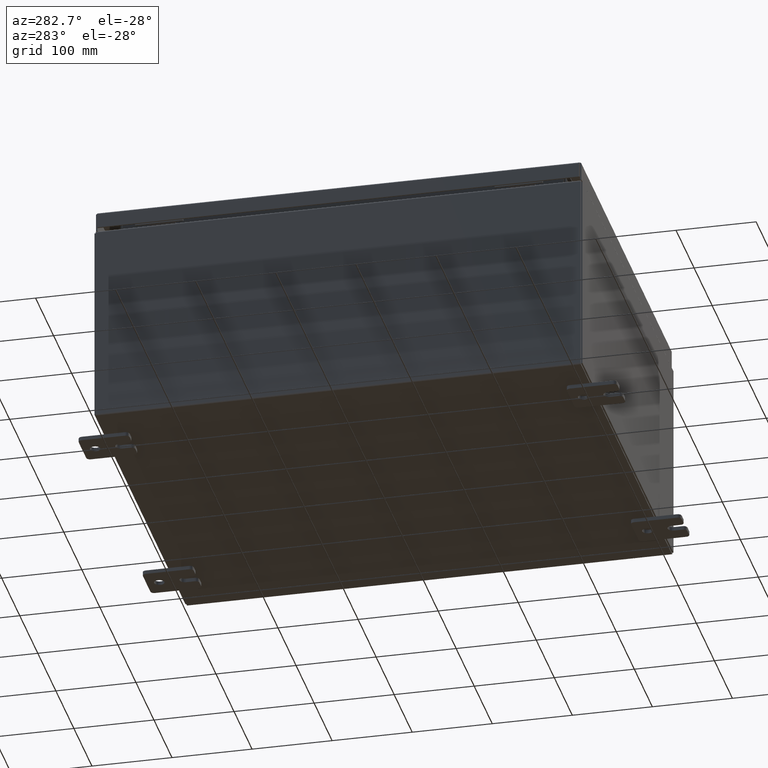
[diagram: clean part render]
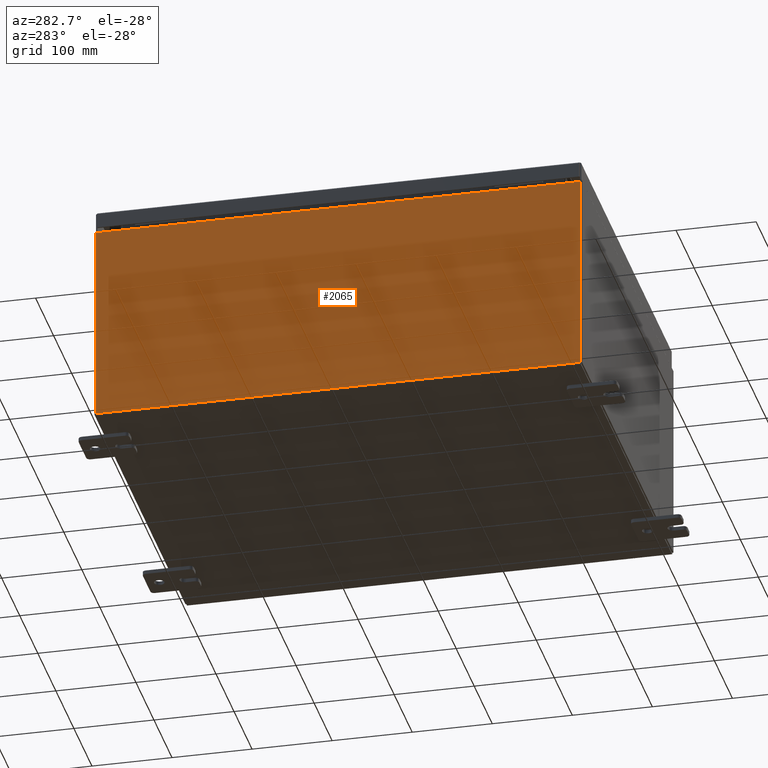
[diagram: same view with one face highlighted and labeled with its STEP entity id]
A machine part, auxiliary view. The second image highlights one B-rep face of the part: STEP entity #2065.
In plain terms, the highlighted planar face has unit normal (1, 0, 0).
Its self-contained STEP definition (entity closure, byte-faithful):
#131 = DIRECTION ( 'NONE',  ( 3.523082860860888200E-015, 0.0000000000000000000, -1.000000000000000000 ) ) ;
#1547 = DIRECTION ( 'NONE',  ( 1.000000000000000000, 0.0000000000000000000, 3.523082860860887800E-015 ) ) ;
#2065 = ADVANCED_FACE ( 'NONE', ( #24390 ), #36664, .F. ) ;
#2992 = CARTESIAN_POINT ( 'NONE',  ( -10.00000000000000000, 11.92530000000000000, 0.01299999999999984700 ) ) ;
#9116 = VERTEX_POINT ( 'NONE', #39645 ) ;
#10622 = EDGE_CURVE ( 'NONE', #9116, #56560, #40342, .T. ) ;
#12723 = CARTESIAN_POINT ( 'NONE',  ( -10.00000000000000000, 11.92530000000000000, 0.01299999999999984300 ) ) ;
#13465 = DIRECTION ( 'NONE',  ( 3.523082860860887800E-015, 0.0000000000000000000, -1.000000000000000000 ) ) ;
#13524 = ORIENTED_EDGE ( 'NONE', *, *, #10622, .T. ) ;
#14455 = CARTESIAN_POINT ( 'NONE',  ( -10.00000000000000000, 11.92530000000000000, -3.549164226462045900E-014 ) ) ;
#14681 = VERTEX_POINT ( 'NONE', #56553 ) ;
#20633 = EDGE_CURVE ( 'NONE', #14681, #56560, #61099, .T. ) ;
#20689 = VECTOR ( 'NONE', #45419, 39.37007874015748100 ) ;
#22689 = CARTESIAN_POINT ( 'NONE',  ( -10.00000000000003600, -11.92529999999999500, 9.837599999999998300 ) ) ;
#23096 = CARTESIAN_POINT ( 'NONE',  ( -10.00000000000000000, -11.92530000000000000, -3.549164226462045900E-014 ) ) ;
#24390 = FACE_OUTER_BOUND ( 'NONE', #39885, .T. ) ;
#25938 = CARTESIAN_POINT ( 'NONE',  ( -10.00000000000003600, -11.92530000000000000, 9.837599999999998300 ) ) ;
#26504 = ORIENTED_EDGE ( 'NONE', *, *, #36127, .T. ) ;
#27325 = VECTOR ( 'NONE', #131, 39.37007874015748100 ) ;
#28976 = ORIENTED_EDGE ( 'NONE', *, *, #45570, .T. ) ;
#36127 = EDGE_CURVE ( 'NONE', #51506, #9116, #59822, .T. ) ;
#36451 = CARTESIAN_POINT ( 'NONE',  ( -10.00000000000000000, 0.0000000000000000000, -3.549164226462045900E-014 ) ) ;
#36562 = VECTOR ( 'NONE', #37611, 39.37007874015748100 ) ;
#36664 = PLANE ( 'NONE',  #58612 ) ;
#37254 = LINE ( 'NONE', #23096, #63378 ) ;
#37611 = DIRECTION ( 'NONE',  ( -0.0000000000000000000, 1.000000000000000000, -0.0000000000000000000 ) ) ;
#39645 = CARTESIAN_POINT ( 'NONE',  ( -10.00000000000003600, 11.92530000000000000, 9.837599999999998300 ) ) ;
#39885 = EDGE_LOOP ( 'NONE', ( #26504, #13524, #48041, #28976 ) ) ;
#40342 = LINE ( 'NONE', #14455, #27325 ) ;
#45419 = DIRECTION ( 'NONE',  ( 0.0000000000000000000, 1.000000000000000000, 0.0000000000000000000 ) ) ;
#45570 = EDGE_CURVE ( 'NONE', #14681, #51506, #37254, .T. ) ;
#48041 = ORIENTED_EDGE ( 'NONE', *, *, #20633, .F. ) ;
#51506 = VERTEX_POINT ( 'NONE', #22689 ) ;
#56553 = CARTESIAN_POINT ( 'NONE',  ( -10.00000000000000000, -11.92529999999999800, 0.01299999999999984700 ) ) ;
#56560 = VERTEX_POINT ( 'NONE', #12723 ) ;
#58612 = AXIS2_PLACEMENT_3D ( 'NONE', #36451, #1547, #13465 ) ;
#59822 = LINE ( 'NONE', #25938, #20689 ) ;
#61099 = LINE ( 'NONE', #2992, #36562 ) ;
#62355 = DIRECTION ( 'NONE',  ( -3.523082860860888200E-015, 0.0000000000000000000, 1.000000000000000000 ) ) ;
#63378 = VECTOR ( 'NONE', #62355, 39.37007874015748100 ) ;